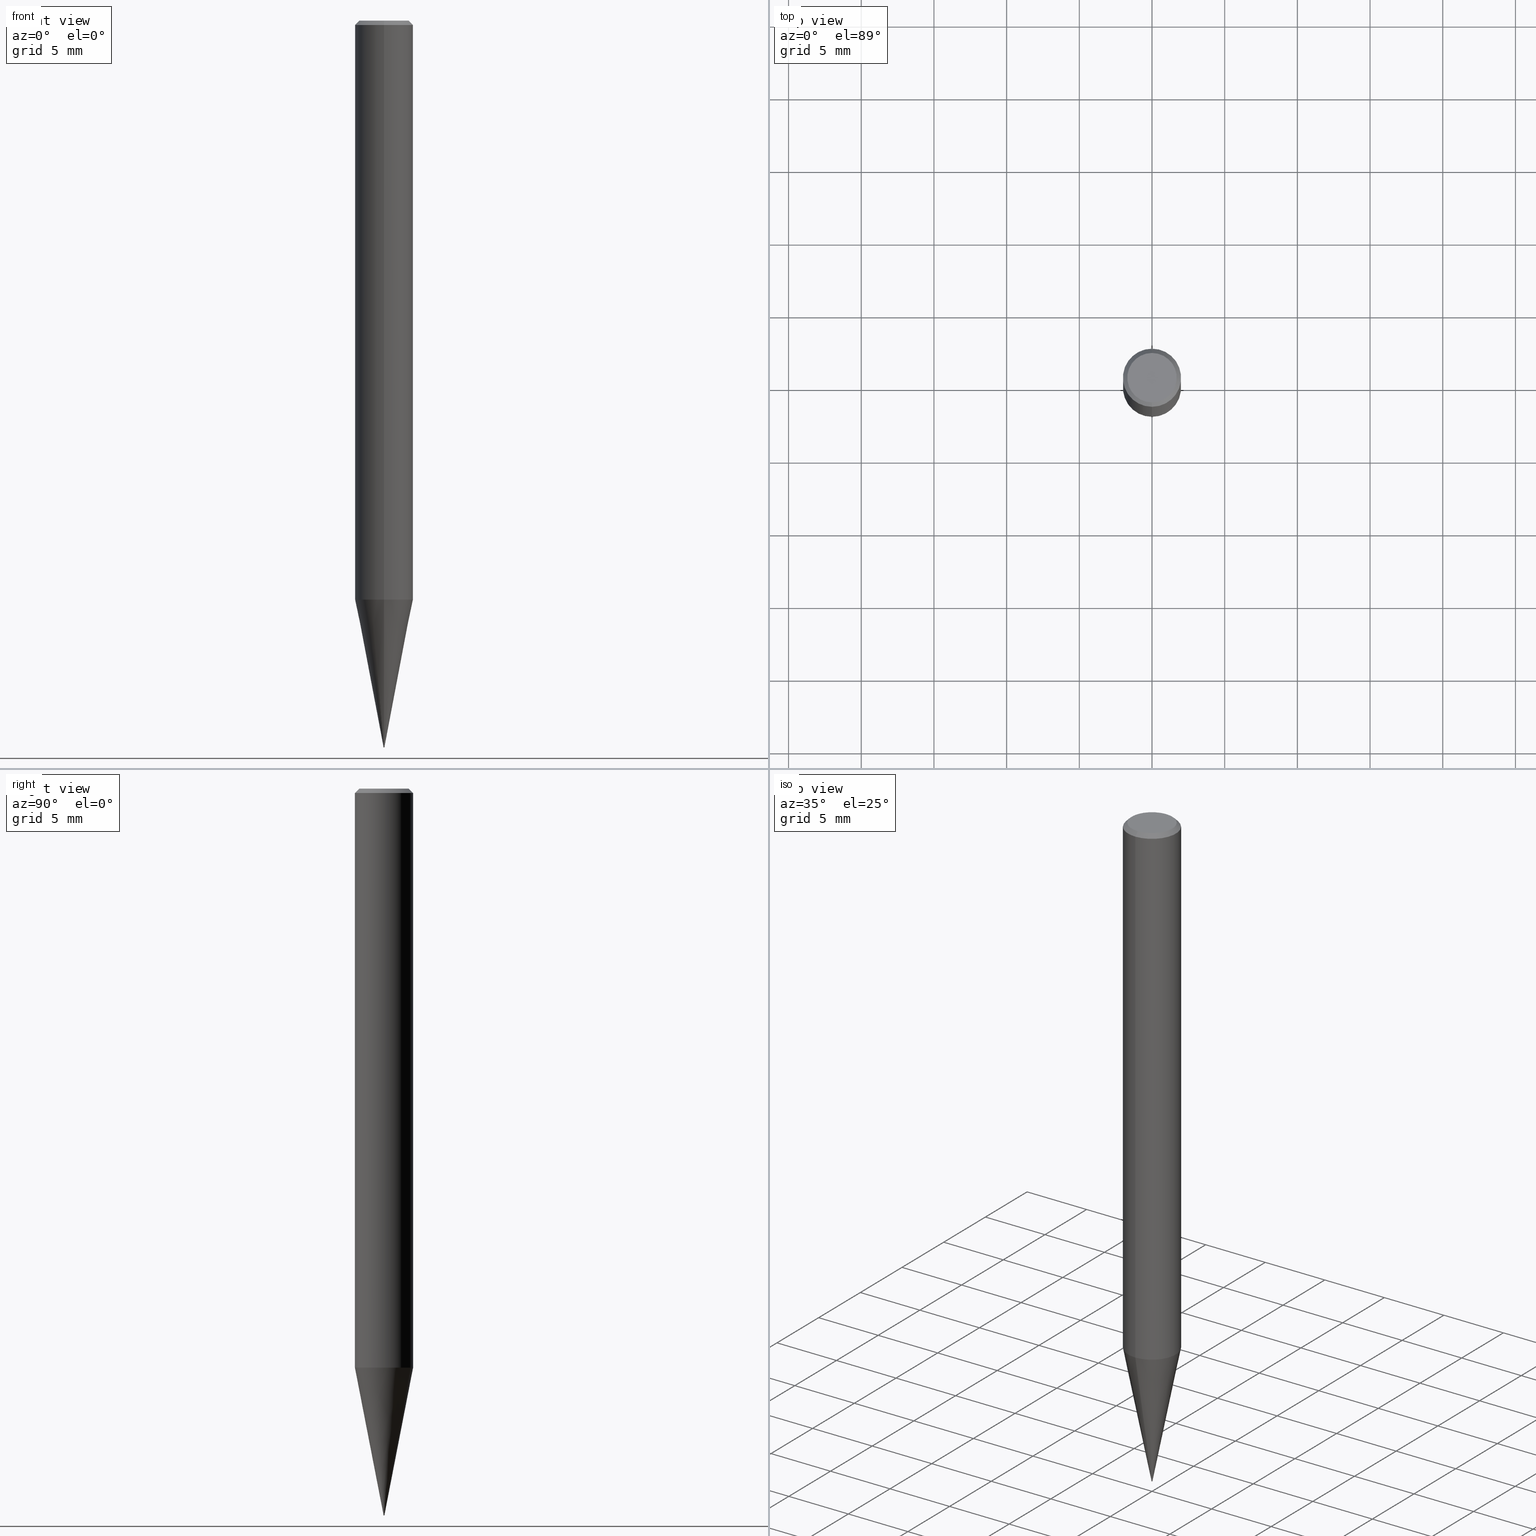
[diagram: canonical four-view strip — front | top / right | iso, engineering-drawing reading convention]
A machine part, canonical four-view strip (front | top / right | iso — engineering-drawing reading convention). The complete STEP part file that produces these views, byte-faithful:
ISO-10303-21;
HEADER;
FILE_DESCRIPTION(('no description'),'unknown implementation level');
FILE_NAME('HSB20008-0008-Huellk.stp','  ',('CIMSOURCE GmbH'),('CADClick - KiM GmbH - www.kimweb.de'),'unknown preprocess','ACIS','unknown authorization');
FILE_SCHEMA(('automotive_design'));
ENDSEC;
DATA;
#1=MECHANICAL_DESIGN_GEOMETRIC_PRESENTATION_REPRESENTATION(' ',(#14,#15,#16,#17,#18,#19,#20,#21,#22,#23,#24,#25,#26,#27,#28,#29,#30,#31,#32,#33,#34,#35,#36,#37,#38,#39,#40,#41,#42,#43,#44,#45,#46,#47,#48,#49,#50,#51,#52,#53,#54,#55,#56,#57,#58,#59,#60,#61,#62,#63,#64,#65,#66),#10);
#2=PRODUCT_DEFINITION_CONTEXT('',#67,'design');
#3=APPLICATION_PROTOCOL_DEFINITION('INTERNATIONAL STANDARD','automotive_design',1994,#67);
#4=PRODUCT_CATEGORY_RELATIONSHIP('NONE','NONE',#68,#69);
#5=SHAPE_DEFINITION_REPRESENTATION(#70,#71);
#6=PRODUCT_DEFINITION_CONTEXT('',#72,'design');
#7=APPLICATION_PROTOCOL_DEFINITION('INTERNATIONAL STANDARD','automotive_design',1994,#72);
#8=PRODUCT_CATEGORY_RELATIONSHIP('NONE','NONE',#73,#74);
#9=SHAPE_DEFINITION_REPRESENTATION(#75,#76);
#10= (GEOMETRIC_REPRESENTATION_CONTEXT(3)GLOBAL_UNCERTAINTY_ASSIGNED_CONTEXT((#79))GLOBAL_UNIT_ASSIGNED_CONTEXT((#81,#82,#83))REPRESENTATION_CONTEXT('NONE','WORKSPACE'));
#14=STYLED_ITEM('',(#85),#86);
#15=STYLED_ITEM('',(#87),#88);
#16=STYLED_ITEM('',(#89),#90);
#17=STYLED_ITEM('',(#91),#92);
#18=STYLED_ITEM('',(#93),#94);
#19=STYLED_ITEM('',(#95),#96);
#20=STYLED_ITEM('',(#97),#98);
#21=STYLED_ITEM('',(#99),#100);
#22=STYLED_ITEM('',(#101),#102);
#23=STYLED_ITEM('',(#103),#104);
#24=STYLED_ITEM('',(#105),#106);
#25=STYLED_ITEM('',(#107),#108);
#26=STYLED_ITEM('',(#109),#110);
#27=STYLED_ITEM('',(#111),#112);
#28=STYLED_ITEM('',(#113),#114);
#29=STYLED_ITEM('',(#115),#116);
#30=STYLED_ITEM('',(#117),#118);
#31=STYLED_ITEM('',(#119),#120);
#32=STYLED_ITEM('',(#121),#122);
#33=STYLED_ITEM('',(#123),#124);
#34=STYLED_ITEM('',(#125),#126);
#35=STYLED_ITEM('',(#127),#128);
#36=STYLED_ITEM('',(#129),#130);
#37=STYLED_ITEM('',(#131),#132);
#38=STYLED_ITEM('',(#133),#134);
#39=STYLED_ITEM('',(#135),#136);
#40=STYLED_ITEM('',(#137),#138);
#41=STYLED_ITEM('',(#139),#140);
#42=STYLED_ITEM('',(#141),#142);
#43=STYLED_ITEM('',(#143),#144);
#44=STYLED_ITEM('',(#145),#146);
#45=STYLED_ITEM('',(#147),#148);
#46=STYLED_ITEM('',(#149),#150);
#47=STYLED_ITEM('',(#151),#152);
#48=STYLED_ITEM('',(#153),#154);
#49=STYLED_ITEM('',(#155),#156);
#50=STYLED_ITEM('',(#157),#158);
#51=STYLED_ITEM('',(#159),#160);
#52=STYLED_ITEM('',(#161),#162);
#53=STYLED_ITEM('',(#163),#164);
#54=STYLED_ITEM('',(#165),#166);
#55=STYLED_ITEM('',(#167),#168);
#56=STYLED_ITEM('',(#169),#170);
#57=STYLED_ITEM('',(#171),#172);
#58=STYLED_ITEM('',(#173),#174);
#59=STYLED_ITEM('',(#175),#176);
#60=STYLED_ITEM('',(#177),#178);
#61=STYLED_ITEM('',(#179),#180);
#62=STYLED_ITEM('',(#181),#182);
#63=STYLED_ITEM('',(#183),#184);
#64=STYLED_ITEM('',(#185),#186);
#65=STYLED_ITEM('',(#187),#188);
#66=STYLED_ITEM('',(#189),#190);
#67=APPLICATION_CONTEXT(' ');
#68=PRODUCT_CATEGORY('part','NONE');
#69=PRODUCT_RELATED_PRODUCT_CATEGORY('detail',' ',(#191));
#70=PRODUCT_DEFINITION_SHAPE('NONE','NONE',#192);
#71=ADVANCED_BREP_SHAPE_REPRESENTATION('1',(#86,#193),#10);
#72=APPLICATION_CONTEXT(' ');
#73=PRODUCT_CATEGORY('part','NONE');
#74=PRODUCT_RELATED_PRODUCT_CATEGORY('detail',' ',(#194));
#75=PRODUCT_DEFINITION_SHAPE('NONE','NONE',#195);
#76=ADVANCED_BREP_SHAPE_REPRESENTATION('2',(#92,#196),#10);
#79=UNCERTAINTY_MEASURE_WITH_UNIT(LENGTH_MEASURE(1.0E-006),#81,'','');
#81= (CONVERSION_BASED_UNIT('MILLIMETRE',#199)LENGTH_UNIT()NAMED_UNIT(#202));
#82= (NAMED_UNIT(#204)PLANE_ANGLE_UNIT()SI_UNIT($,.RADIAN.));
#83= (NAMED_UNIT(#204)SOLID_ANGLE_UNIT()SI_UNIT($,.STERADIAN.));
#85=PRESENTATION_STYLE_ASSIGNMENT((#210));
#86=MANIFOLD_SOLID_BREP('1',#211);
#87=PRESENTATION_STYLE_ASSIGNMENT((#212));
#88=VERTEX_POINT('',#213);
#89=PRESENTATION_STYLE_ASSIGNMENT((#214));
#90=VERTEX_POINT('',#215);
#91=PRESENTATION_STYLE_ASSIGNMENT((#216));
#92=MANIFOLD_SOLID_BREP('2',#217);
#93=PRESENTATION_STYLE_ASSIGNMENT((#218));
#94=EDGE_CURVE('',#146,#142,#219,.T.);
#95=PRESENTATION_STYLE_ASSIGNMENT((#220));
#96=VERTEX_POINT('',#221);
#97=PRESENTATION_STYLE_ASSIGNMENT((#222));
#98=EDGE_CURVE('',#90,#146,#223,.T.);
#99=PRESENTATION_STYLE_ASSIGNMENT((#224));
#100=EDGE_CURVE('',#88,#156,#225,.T.);
#101=PRESENTATION_STYLE_ASSIGNMENT((#226));
#102=EDGE_CURVE('',#142,#164,#227,.T.);
#103=PRESENTATION_STYLE_ASSIGNMENT((#228));
#104=EDGE_CURVE('',#122,#96,#229,.T.);
#105=PRESENTATION_STYLE_ASSIGNMENT((#230));
#106=EDGE_CURVE('',#132,#90,#231,.T.);
#107=PRESENTATION_STYLE_ASSIGNMENT((#232));
#108=EDGE_CURVE('',#96,#176,#233,.T.);
#109=PRESENTATION_STYLE_ASSIGNMENT((#234));
#110=ADVANCED_FACE('',(#235),#236,.T.);
#111=PRESENTATION_STYLE_ASSIGNMENT((#237));
#112=ADVANCED_FACE('',(#238),#239,.T.);
#113=PRESENTATION_STYLE_ASSIGNMENT((#240));
#114=EDGE_CURVE('',#140,#122,#241,.T.);
#115=PRESENTATION_STYLE_ASSIGNMENT((#242));
#116=EDGE_CURVE('',#152,#156,#243,.T.);
#117=PRESENTATION_STYLE_ASSIGNMENT((#244));
#118=EDGE_CURVE('',#90,#132,#245,.T.);
#119=PRESENTATION_STYLE_ASSIGNMENT((#246));
#120=ADVANCED_FACE('',(#247),#248,.T.);
#121=PRESENTATION_STYLE_ASSIGNMENT((#249));
#122=VERTEX_POINT('',#250);
#123=PRESENTATION_STYLE_ASSIGNMENT((#251));
#124=ADVANCED_FACE('',(#252),#253,.T.);
#125=PRESENTATION_STYLE_ASSIGNMENT((#254));
#126=ADVANCED_FACE('',(#255),#256,.T.);
#127=PRESENTATION_STYLE_ASSIGNMENT((#257));
#128=ADVANCED_FACE('',(#258),#259,.T.);
#129=PRESENTATION_STYLE_ASSIGNMENT((#260));
#130=EDGE_CURVE('',#96,#122,#261,.T.);
#131=PRESENTATION_STYLE_ASSIGNMENT((#262));
#132=VERTEX_POINT('',#263);
#133=PRESENTATION_STYLE_ASSIGNMENT((#264));
#134=ADVANCED_FACE('',(#265),#266,.T.);
#135=PRESENTATION_STYLE_ASSIGNMENT((#267));
#136=VERTEX_POINT('',#268);
#137=PRESENTATION_STYLE_ASSIGNMENT((#269));
#138=EDGE_CURVE('',#164,#180,#270,.T.);
#139=PRESENTATION_STYLE_ASSIGNMENT((#271));
#140=VERTEX_POINT('',#272);
#141=PRESENTATION_STYLE_ASSIGNMENT((#273));
#142=VERTEX_POINT('',#274);
#143=PRESENTATION_STYLE_ASSIGNMENT((#275));
#144=EDGE_CURVE('',#156,#152,#276,.T.);
#145=PRESENTATION_STYLE_ASSIGNMENT((#277));
#146=VERTEX_POINT('',#278);
#147=PRESENTATION_STYLE_ASSIGNMENT((#279));
#148=EDGE_CURVE('',#152,#136,#280,.T.);
#149=PRESENTATION_STYLE_ASSIGNMENT((#281));
#150=EDGE_CURVE('',#140,#176,#282,.T.);
#151=PRESENTATION_STYLE_ASSIGNMENT((#283));
#152=VERTEX_POINT('',#284);
#153=PRESENTATION_STYLE_ASSIGNMENT((#285));
#154=EDGE_CURVE('',#180,#146,#286,.T.);
#155=PRESENTATION_STYLE_ASSIGNMENT((#287));
#156=VERTEX_POINT('',#288);
#157=PRESENTATION_STYLE_ASSIGNMENT((#289));
#158=EDGE_CURVE('',#146,#180,#290,.T.);
#159=PRESENTATION_STYLE_ASSIGNMENT((#291));
#160=EDGE_CURVE('',#180,#132,#292,.T.);
#161=PRESENTATION_STYLE_ASSIGNMENT((#293));
#162=ADVANCED_FACE('',(#294),#295,.T.);
#163=PRESENTATION_STYLE_ASSIGNMENT((#296));
#164=VERTEX_POINT('',#297);
#165=PRESENTATION_STYLE_ASSIGNMENT((#298));
#166=EDGE_CURVE('',#164,#142,#299,.T.);
#167=PRESENTATION_STYLE_ASSIGNMENT((#300));
#168=EDGE_CURVE('',#88,#136,#301,.T.);
#169=PRESENTATION_STYLE_ASSIGNMENT((#302));
#170=ADVANCED_FACE('',(#303),#304,.T.);
#171=PRESENTATION_STYLE_ASSIGNMENT((#305));
#172=ADVANCED_FACE('',(#306),#307,.T.);
#173=PRESENTATION_STYLE_ASSIGNMENT((#308));
#174=ADVANCED_FACE('',(#309,#310),#311,.T.);
#175=PRESENTATION_STYLE_ASSIGNMENT((#312));
#176=VERTEX_POINT('',#313);
#177=PRESENTATION_STYLE_ASSIGNMENT((#314));
#178=ADVANCED_FACE('',(#315),#316,.T.);
#179=PRESENTATION_STYLE_ASSIGNMENT((#317));
#180=VERTEX_POINT('',#318);
#181=PRESENTATION_STYLE_ASSIGNMENT((#319));
#182=EDGE_CURVE('',#176,#140,#320,.T.);
#183=PRESENTATION_STYLE_ASSIGNMENT((#321));
#184=EDGE_CURVE('',#136,#88,#322,.T.);
#185=PRESENTATION_STYLE_ASSIGNMENT((#323));
#186=EDGE_CURVE('',#152,#156,#324,.T.);
#187=PRESENTATION_STYLE_ASSIGNMENT((#325));
#188=ADVANCED_FACE('',(#326),#327,.T.);
#189=PRESENTATION_STYLE_ASSIGNMENT((#328));
#190=ADVANCED_FACE('',(#329),#330,.T.);
#191=PRODUCT('1','1','PART-1-DESC',(#331));
#192=PRODUCT_DEFINITION('NONE','NONE',#332,#2);
#193=AXIS2_PLACEMENT_3D('',#333,#334,#335);
#194=PRODUCT('2','2','PART-2-DESC',(#336));
#195=PRODUCT_DEFINITION('NONE','NONE',#337,#6);
#196=AXIS2_PLACEMENT_3D('',#338,#339,#340);
#199=LENGTH_MEASURE_WITH_UNIT(LENGTH_MEASURE(1.0),#341);
#202=DIMENSIONAL_EXPONENTS(1.0,0.0,0.0,0.0,0.0,0.0,0.0);
#204=DIMENSIONAL_EXPONENTS(0.0,0.0,0.0,0.0,0.0,0.0,0.0);
#210=SURFACE_STYLE_USAGE(.BOTH.,#342);
#211=CLOSED_SHELL('',(#172,#178,#120,#174,#126,#162,#190,#134,#170));
#212=POINT_STYLE(' ',#343,POSITIVE_LENGTH_MEASURE(1.0E-006),#344);
#213=CARTESIAN_POINT('',(0.0,0.0399,-49.92));
#214=POINT_STYLE(' ',#345,POSITIVE_LENGTH_MEASURE(1.0E-006),#346);
#215=CARTESIAN_POINT('',(2.44921270764475E-016,-2.0,-39.837));
#216=SURFACE_STYLE_USAGE(.BOTH.,#347);
#217=CLOSED_SHELL('',(#110,#188,#124,#128,#112));
#218=CURVE_STYLE('',#348,POSITIVE_LENGTH_MEASURE(1.0E-006),#349);
#219=LINE('',#350,#351);
#220=POINT_STYLE(' ',#352,POSITIVE_LENGTH_MEASURE(1.0E-006),#353);
#221=CARTESIAN_POINT('',(0.0,1.99995,-39.837));
#222=CURVE_STYLE('',#354,POSITIVE_LENGTH_MEASURE(1.0E-006),#355);
#223=LINE('',#356,#357);
#224=CURVE_STYLE('',#358,POSITIVE_LENGTH_MEASURE(1.0E-006),#359);
#225=LINE('',#360,#361);
#226=CURVE_STYLE('',#362,POSITIVE_LENGTH_MEASURE(1.0E-006),#363);
#227=CIRCLE('',#364,1.7);
#228=CURVE_STYLE('',#365,POSITIVE_LENGTH_MEASURE(1.0E-006),#366);
#229=CIRCLE('',#367,1.99995);
#230=CURVE_STYLE('',#368,POSITIVE_LENGTH_MEASURE(1.0E-006),#369);
#231=CIRCLE('',#370,2.0);
#232=CURVE_STYLE('',#371,POSITIVE_LENGTH_MEASURE(1.0E-006),#372);
#233=LINE('',#373,#374);
#234=SURFACE_STYLE_USAGE(.BOTH.,#375);
#235=FACE_OUTER_BOUND('',#376,.T.);
#236=SPHERICAL_SURFACE('',#377,0.04);
#237=SURFACE_STYLE_USAGE(.BOTH.,#378);
#238=FACE_OUTER_BOUND('',#379,.T.);
#239=SPHERICAL_SURFACE('',#380,0.04);
#240=CURVE_STYLE('',#381,POSITIVE_LENGTH_MEASURE(1.0E-006),#382);
#241=LINE('',#383,#384);
#242=CURVE_STYLE('',#385,POSITIVE_LENGTH_MEASURE(1.0E-006),#386);
#243=CIRCLE('',#387,0.04);
#244=CURVE_STYLE('',#388,POSITIVE_LENGTH_MEASURE(1.0E-006),#389);
#245=CIRCLE('',#390,2.0);
#246=SURFACE_STYLE_USAGE(.BOTH.,#391);
#247=FACE_OUTER_BOUND('',#392,.T.);
#248=CONICAL_SURFACE('',#393,1.85,0.785398163397453);
#249=POINT_STYLE(' ',#394,POSITIVE_LENGTH_MEASURE(1.0E-006),#395);
#250=CARTESIAN_POINT('',(2.44915147732706E-016,-1.99995,-39.837));
#251=SURFACE_STYLE_USAGE(.BOTH.,#396);
#252=FACE_OUTER_BOUND('',#397,.T.);
#253=PLANE('',#398);
#254=SURFACE_STYLE_USAGE(.BOTH.,#399);
#255=FACE_OUTER_BOUND('',#400,.T.);
#256=PLANE('',#401);
#257=SURFACE_STYLE_USAGE(.BOTH.,#402);
#258=FACE_OUTER_BOUND('',#403,.T.);
#259=CONICAL_SURFACE('',#404,0.03995,0.00249999479168627);
#260=CURVE_STYLE('',#405,POSITIVE_LENGTH_MEASURE(1.0E-006),#406);
#261=CIRCLE('',#407,1.99995);
#262=POINT_STYLE(' ',#408,POSITIVE_LENGTH_MEASURE(1.0E-006),#409);
#263=CARTESIAN_POINT('',(0.0,2.0,-39.837));
#264=SURFACE_STYLE_USAGE(.BOTH.,#410);
#265=FACE_OUTER_BOUND('',#411,.T.);
#266=CONICAL_SURFACE('',#412,1.01995,0.191992271145669);
#267=POINT_STYLE(' ',#413,POSITIVE_LENGTH_MEASURE(1.0E-006),#414);
#268=CARTESIAN_POINT('',(4.88617935175128E-018,-0.0399,-49.92));
#269=CURVE_STYLE('',#415,POSITIVE_LENGTH_MEASURE(1.0E-006),#416);
#270=LINE('',#417,#418);
#271=POINT_STYLE(' ',#419,POSITIVE_LENGTH_MEASURE(1.0E-006),#420);
#272=CARTESIAN_POINT('',(4.89230238352041E-018,-0.03995,-49.92));
#273=POINT_STYLE(' ',#421,POSITIVE_LENGTH_MEASURE(1.0E-006),#422);
#274=CARTESIAN_POINT('',(2.08183080149804E-016,-1.7,0.0));
#275=CURVE_STYLE('',#423,POSITIVE_LENGTH_MEASURE(1.0E-006),#424);
#276=CIRCLE('',#425,0.04);
#277=POINT_STYLE(' ',#426,POSITIVE_LENGTH_MEASURE(1.0E-006),#427);
#278=CARTESIAN_POINT('',(2.44921270764475E-016,-2.0,-0.299999999999997));
#279=CURVE_STYLE('',#428,POSITIVE_LENGTH_MEASURE(1.0E-006),#429);
#280=LINE('',#430,#431);
#281=CURVE_STYLE('',#432,POSITIVE_LENGTH_MEASURE(1.0E-006),#433);
#282=CIRCLE('',#434,0.03995);
#283=POINT_STYLE(' ',#435,POSITIVE_LENGTH_MEASURE(1.0E-006),#436);
#284=CARTESIAN_POINT('',(4.89842541528951E-018,-0.04,-49.96));
#285=CURVE_STYLE('',#437,POSITIVE_LENGTH_MEASURE(1.0E-006),#438);
#286=CIRCLE('',#439,2.0);
#287=POINT_STYLE(' ',#440,POSITIVE_LENGTH_MEASURE(1.0E-006),#441);
#288=CARTESIAN_POINT('',(0.0,0.04,-49.96));
#289=CURVE_STYLE('',#442,POSITIVE_LENGTH_MEASURE(1.0E-006),#443);
#290=CIRCLE('',#444,2.0);
#291=CURVE_STYLE('',#445,POSITIVE_LENGTH_MEASURE(1.0E-006),#446);
#292=LINE('',#447,#448);
#293=SURFACE_STYLE_USAGE(.BOTH.,#449);
#294=FACE_OUTER_BOUND('',#450,.T.);
#295=CONICAL_SURFACE('',#451,1.85,0.785398163397453);
#296=POINT_STYLE(' ',#452,POSITIVE_LENGTH_MEASURE(1.0E-006),#453);
#297=CARTESIAN_POINT('',(0.0,1.7,0.0));
#298=CURVE_STYLE('',#454,POSITIVE_LENGTH_MEASURE(1.0E-006),#455);
#299=CIRCLE('',#456,1.7);
#300=CURVE_STYLE('',#457,POSITIVE_LENGTH_MEASURE(1.0E-006),#458);
#301=CIRCLE('',#459,0.0399);
#302=SURFACE_STYLE_USAGE(.BOTH.,#460);
#303=FACE_OUTER_BOUND('',#461,.T.);
#304=PLANE('',#462);
#305=SURFACE_STYLE_USAGE(.BOTH.,#463);
#306=FACE_OUTER_BOUND('',#464,.T.);
#307=CONICAL_SURFACE('',#465,1.01995,0.191992271145669);
#308=SURFACE_STYLE_USAGE(.BOTH.,#466);
#309=FACE_OUTER_BOUND('',#467,.T.);
#310=FACE_BOUND('',#468,.T.);
#311=PLANE('',#469);
#312=POINT_STYLE(' ',#470,POSITIVE_LENGTH_MEASURE(1.0E-006),#471);
#313=CARTESIAN_POINT('',(0.0,0.03995,-49.92));
#314=SURFACE_STYLE_USAGE(.BOTH.,#472);
#315=FACE_OUTER_BOUND('',#473,.T.);
#316=CYLINDRICAL_SURFACE('',#474,2.0);
#317=POINT_STYLE(' ',#475,POSITIVE_LENGTH_MEASURE(1.0E-006),#476);
#318=CARTESIAN_POINT('',(0.0,2.0,-0.299999999999997));
#319=CURVE_STYLE('',#477,POSITIVE_LENGTH_MEASURE(1.0E-006),#478);
#320=CIRCLE('',#479,0.03995);
#321=CURVE_STYLE('',#480,POSITIVE_LENGTH_MEASURE(1.0E-006),#481);
#322=CIRCLE('',#482,0.0399);
#323=CURVE_STYLE('',#483,POSITIVE_LENGTH_MEASURE(1.0E-006),#484);
#324=CIRCLE('',#485,0.04);
#325=SURFACE_STYLE_USAGE(.BOTH.,#486);
#326=FACE_OUTER_BOUND('',#487,.T.);
#327=CONICAL_SURFACE('',#488,0.03995,0.00249999479168627);
#328=SURFACE_STYLE_USAGE(.BOTH.,#489);
#329=FACE_OUTER_BOUND('',#490,.T.);
#330=CYLINDRICAL_SURFACE('',#491,2.0);
#331=PRODUCT_CONTEXT('',#67,'mechanical');
#332=PRODUCT_DEFINITION_FORMATION_WITH_SPECIFIED_SOURCE(' ','NONE',#191,.NOT_KNOWN.);
#333=CARTESIAN_POINT('',(0.0,0.0,0.0));
#334=DIRECTION('',(0.0,0.0,1.0));
#335=DIRECTION('',(1.0,0.0,0.0));
#336=PRODUCT_CONTEXT('',#72,'mechanical');
#337=PRODUCT_DEFINITION_FORMATION_WITH_SPECIFIED_SOURCE(' ','NONE',#194,.NOT_KNOWN.);
#338=CARTESIAN_POINT('',(0.0,0.0,0.0));
#339=DIRECTION('',(0.0,0.0,1.0));
#340=DIRECTION('',(1.0,0.0,0.0));
#341= (NAMED_UNIT(#202)LENGTH_UNIT()SI_UNIT(.MILLI.,.METRE.));
#342=SURFACE_SIDE_STYLE('',(#493));
#343=PRE_DEFINED_MARKER('');
#344=COLOUR_RGB('',0.800000011920929,0.800000011920929,0.800000011920929);
#345=PRE_DEFINED_MARKER('');
#346=COLOUR_RGB('',0.498039215803146,0.498039215803146,0.498039215803146);
#347=SURFACE_SIDE_STYLE('',(#494));
#348=DRAUGHTING_PRE_DEFINED_CURVE_FONT('continuous');
#349=COLOUR_RGB('',0.498039215803146,0.498039215803146,0.498039215803146);
#350=CARTESIAN_POINT('',(2.2655217545714E-016,-1.85,-0.149999999999999));
#351=VECTOR('',#495,1.0);
#352=PRE_DEFINED_MARKER('');
#353=COLOUR_RGB('',0.498039215803146,0.498039215803146,0.498039215803146);
#354=DRAUGHTING_PRE_DEFINED_CURVE_FONT('continuous');
#355=COLOUR_RGB('',0.498039215803146,0.498039215803146,0.498039215803146);
#356=CARTESIAN_POINT('',(2.44921270764475E-016,-2.0,-20.0685));
#357=VECTOR('',#496,1.0);
#358=DRAUGHTING_PRE_DEFINED_CURVE_FONT('continuous');
#359=COLOUR_RGB('',0.800000011920929,0.800000011920929,0.800000011920929);
#360=CARTESIAN_POINT('',(-4.8923023835204E-018,0.03995,-49.94));
#361=VECTOR('',#497,1.0);
#362=DRAUGHTING_PRE_DEFINED_CURVE_FONT('continuous');
#363=COLOUR_RGB('',0.498039215803146,0.498039215803146,0.498039215803146);
#364=AXIS2_PLACEMENT_3D('',#498,#499,#500);
#365=DRAUGHTING_PRE_DEFINED_CURVE_FONT('continuous');
#366=COLOUR_RGB('',0.498039215803146,0.498039215803146,0.498039215803146);
#367=AXIS2_PLACEMENT_3D('',#501,#502,#503);
#368=DRAUGHTING_PRE_DEFINED_CURVE_FONT('continuous');
#369=COLOUR_RGB('',0.498039215803146,0.498039215803146,0.498039215803146);
#370=AXIS2_PLACEMENT_3D('',#504,#505,#506);
#371=DRAUGHTING_PRE_DEFINED_CURVE_FONT('continuous');
#372=COLOUR_RGB('',0.498039215803146,0.498039215803146,0.498039215803146);
#373=CARTESIAN_POINT('',(-1.24903725058113E-016,1.01995,-44.8785));
#374=VECTOR('',#507,1.0);
#375=SURFACE_SIDE_STYLE('',(#508));
#376=EDGE_LOOP('',(#509,#510));
#377=AXIS2_PLACEMENT_3D('',#511,#512,#513);
#378=SURFACE_SIDE_STYLE('',(#514));
#379=EDGE_LOOP('',(#515,#516));
#380=AXIS2_PLACEMENT_3D('',#517,#518,#519);
#381=DRAUGHTING_PRE_DEFINED_CURVE_FONT('continuous');
#382=COLOUR_RGB('',0.498039215803146,0.498039215803146,0.498039215803146);
#383=CARTESIAN_POINT('',(1.24903725058113E-016,-1.01995,-44.8785));
#384=VECTOR('',#520,1.0);
#385=DRAUGHTING_PRE_DEFINED_CURVE_FONT('continuous');
#386=COLOUR_RGB('',0.800000011920929,0.800000011920929,0.800000011920929);
#387=AXIS2_PLACEMENT_3D('',#521,#522,#523);
#388=DRAUGHTING_PRE_DEFINED_CURVE_FONT('continuous');
#389=COLOUR_RGB('',0.498039215803146,0.498039215803146,0.498039215803146);
#390=AXIS2_PLACEMENT_3D('',#524,#525,#526);
#391=SURFACE_SIDE_STYLE('',(#527));
#392=EDGE_LOOP('',(#528,#529,#530,#531));
#393=AXIS2_PLACEMENT_3D('',#532,#533,#534);
#394=PRE_DEFINED_MARKER('');
#395=COLOUR_RGB('',0.498039215803146,0.498039215803146,0.498039215803146);
#396=SURFACE_SIDE_STYLE('',(#535));
#397=EDGE_LOOP('',(#536,#537));
#398=AXIS2_PLACEMENT_3D('',#538,#539,#540);
#399=SURFACE_SIDE_STYLE('',(#541));
#400=EDGE_LOOP('',(#542,#543));
#401=AXIS2_PLACEMENT_3D('',#544,#545,#546);
#402=SURFACE_SIDE_STYLE('',(#547));
#403=EDGE_LOOP('',(#548,#549,#550,#551));
#404=AXIS2_PLACEMENT_3D('',#552,#553,#554);
#405=DRAUGHTING_PRE_DEFINED_CURVE_FONT('continuous');
#406=COLOUR_RGB('',0.498039215803146,0.498039215803146,0.498039215803146);
#407=AXIS2_PLACEMENT_3D('',#555,#556,#557);
#408=PRE_DEFINED_MARKER('');
#409=COLOUR_RGB('',0.498039215803146,0.498039215803146,0.498039215803146);
#410=SURFACE_SIDE_STYLE('',(#558));
#411=EDGE_LOOP('',(#559,#560,#561,#562));
#412=AXIS2_PLACEMENT_3D('',#563,#564,#565);
#413=PRE_DEFINED_MARKER('');
#414=COLOUR_RGB('',0.800000011920929,0.800000011920929,0.800000011920929);
#415=DRAUGHTING_PRE_DEFINED_CURVE_FONT('continuous');
#416=COLOUR_RGB('',0.498039215803146,0.498039215803146,0.498039215803146);
#417=CARTESIAN_POINT('',(-2.2655217545714E-016,1.85,-0.149999999999999));
#418=VECTOR('',#566,1.0);
#419=PRE_DEFINED_MARKER('');
#420=COLOUR_RGB('',0.498039215803146,0.498039215803146,0.498039215803146);
#421=PRE_DEFINED_MARKER('');
#422=COLOUR_RGB('',0.498039215803146,0.498039215803146,0.498039215803146);
#423=DRAUGHTING_PRE_DEFINED_CURVE_FONT('continuous');
#424=COLOUR_RGB('',0.800000011920929,0.800000011920929,0.800000011920929);
#425=AXIS2_PLACEMENT_3D('',#567,#568,#569);
#426=PRE_DEFINED_MARKER('');
#427=COLOUR_RGB('',0.498039215803146,0.498039215803146,0.498039215803146);
#428=DRAUGHTING_PRE_DEFINED_CURVE_FONT('continuous');
#429=COLOUR_RGB('',0.800000011920929,0.800000011920929,0.800000011920929);
#430=CARTESIAN_POINT('',(4.8923023835204E-018,-0.03995,-49.94));
#431=VECTOR('',#570,1.0);
#432=DRAUGHTING_PRE_DEFINED_CURVE_FONT('continuous');
#433=COLOUR_RGB('',0.498039215803146,0.498039215803146,0.498039215803146);
#434=AXIS2_PLACEMENT_3D('',#571,#572,#573);
#435=PRE_DEFINED_MARKER('');
#436=COLOUR_RGB('',0.800000011920929,0.800000011920929,0.800000011920929);
#437=DRAUGHTING_PRE_DEFINED_CURVE_FONT('continuous');
#438=COLOUR_RGB('',0.498039215803146,0.498039215803146,0.498039215803146);
#439=AXIS2_PLACEMENT_3D('',#574,#575,#576);
#440=PRE_DEFINED_MARKER('');
#441=COLOUR_RGB('',0.800000011920929,0.800000011920929,0.800000011920929);
#442=DRAUGHTING_PRE_DEFINED_CURVE_FONT('continuous');
#443=COLOUR_RGB('',0.498039215803146,0.498039215803146,0.498039215803146);
#444=AXIS2_PLACEMENT_3D('',#577,#578,#579);
#445=DRAUGHTING_PRE_DEFINED_CURVE_FONT('continuous');
#446=COLOUR_RGB('',0.498039215803146,0.498039215803146,0.498039215803146);
#447=CARTESIAN_POINT('',(-2.44921270764475E-016,2.0,-20.0685));
#448=VECTOR('',#580,1.0);
#449=SURFACE_SIDE_STYLE('',(#581));
#450=EDGE_LOOP('',(#582,#583,#584,#585));
#451=AXIS2_PLACEMENT_3D('',#586,#587,#588);
#452=PRE_DEFINED_MARKER('');
#453=COLOUR_RGB('',0.498039215803146,0.498039215803146,0.498039215803146);
#454=DRAUGHTING_PRE_DEFINED_CURVE_FONT('continuous');
#455=COLOUR_RGB('',0.498039215803146,0.498039215803146,0.498039215803146);
#456=AXIS2_PLACEMENT_3D('',#589,#590,#591);
#457=DRAUGHTING_PRE_DEFINED_CURVE_FONT('continuous');
#458=COLOUR_RGB('',0.800000011920929,0.800000011920929,0.800000011920929);
#459=AXIS2_PLACEMENT_3D('',#592,#593,#594);
#460=SURFACE_SIDE_STYLE('',(#595));
#461=EDGE_LOOP('',(#596,#597));
#462=AXIS2_PLACEMENT_3D('',#598,#599,#600);
#463=SURFACE_SIDE_STYLE('',(#601));
#464=EDGE_LOOP('',(#602,#603,#604,#605));
#465=AXIS2_PLACEMENT_3D('',#606,#607,#608);
#466=SURFACE_SIDE_STYLE('',(#609));
#467=EDGE_LOOP('',(#610,#611));
#468=EDGE_LOOP('',(#612,#613));
#469=AXIS2_PLACEMENT_3D('',#614,#615,#616);
#470=PRE_DEFINED_MARKER('');
#471=COLOUR_RGB('',0.498039215803146,0.498039215803146,0.498039215803146);
#472=SURFACE_SIDE_STYLE('',(#617));
#473=EDGE_LOOP('',(#618,#619,#620,#621));
#474=AXIS2_PLACEMENT_3D('',#622,#623,#624);
#475=PRE_DEFINED_MARKER('');
#476=COLOUR_RGB('',0.498039215803146,0.498039215803146,0.498039215803146);
#477=DRAUGHTING_PRE_DEFINED_CURVE_FONT('continuous');
#478=COLOUR_RGB('',0.498039215803146,0.498039215803146,0.498039215803146);
#479=AXIS2_PLACEMENT_3D('',#625,#626,#627);
#480=DRAUGHTING_PRE_DEFINED_CURVE_FONT('continuous');
#481=COLOUR_RGB('',0.800000011920929,0.800000011920929,0.800000011920929);
#482=AXIS2_PLACEMENT_3D('',#628,#629,#630);
#483=DRAUGHTING_PRE_DEFINED_CURVE_FONT('continuous');
#484=COLOUR_RGB('',0.800000011920929,0.800000011920929,0.800000011920929);
#485=AXIS2_PLACEMENT_3D('',#631,#632,#633);
#486=SURFACE_SIDE_STYLE('',(#634));
#487=EDGE_LOOP('',(#635,#636,#637,#638));
#488=AXIS2_PLACEMENT_3D('',#639,#640,#641);
#489=SURFACE_SIDE_STYLE('',(#642));
#490=EDGE_LOOP('',(#643,#644,#645,#646));
#491=AXIS2_PLACEMENT_3D('',#647,#648,#649);
#493=SURFACE_STYLE_FILL_AREA(#650);
#494=SURFACE_STYLE_FILL_AREA(#651);
#495=DIRECTION('',(-8.6592745707194E-017,0.707106781186551,0.707106781186544));
#496=DIRECTION('',(-0.0,-0.0,1.0));
#497=DIRECTION('',(-3.06150631736374E-019,0.00249999218753669,-0.999996875014648));
#498=CARTESIAN_POINT('',(0.0,0.0,0.0));
#499=DIRECTION('',(0.0,0.0,-1.0));
#500=DIRECTION('',(0.0,1.0,0.0));
#501=CARTESIAN_POINT('',(0.0,0.0,-39.837));
#502=DIRECTION('',(0.0,0.0,-1.0));
#503=DIRECTION('',(0.0,1.0,0.0));
#504=CARTESIAN_POINT('',(0.0,0.0,-39.837));
#505=DIRECTION('',(0.0,0.0,-1.0));
#506=DIRECTION('',(0.0,1.0,0.0));
#507=DIRECTION('',(2.3367318496573E-017,-0.190814937580851,-0.981626028381489));
#508=SURFACE_STYLE_FILL_AREA(#652);
#509=ORIENTED_EDGE('',*,*,#116,.F.);
#510=ORIENTED_EDGE('',*,*,#186,.T.);
#511=CARTESIAN_POINT('',(0.0,0.0,-49.96));
#512=DIRECTION('',(0.0,1.0,0.0));
#513=DIRECTION('',(0.0,0.0,-1.0));
#514=SURFACE_STYLE_FILL_AREA(#653);
#515=ORIENTED_EDGE('',*,*,#116,.T.);
#516=ORIENTED_EDGE('',*,*,#144,.T.);
#517=CARTESIAN_POINT('',(0.0,0.0,-49.96));
#518=DIRECTION('',(0.0,1.0,0.0));
#519=DIRECTION('',(0.0,0.0,-1.0));
#520=DIRECTION('',(2.3367318496573E-017,-0.190814937580851,0.981626028381489));
#521=CARTESIAN_POINT('',(0.0,0.0,-49.96));
#522=DIRECTION('',(1.0,0.0,1.2246063538224E-016));
#523=DIRECTION('',(-1.2246063538224E-016,0.0,1.0));
#524=CARTESIAN_POINT('',(0.0,0.0,-39.837));
#525=DIRECTION('',(0.0,0.0,-1.0));
#526=DIRECTION('',(0.0,1.0,0.0));
#527=SURFACE_STYLE_FILL_AREA(#654);
#528=ORIENTED_EDGE('',*,*,#138,.F.);
#529=ORIENTED_EDGE('',*,*,#166,.T.);
#530=ORIENTED_EDGE('',*,*,#94,.F.);
#531=ORIENTED_EDGE('',*,*,#154,.F.);
#532=CARTESIAN_POINT('',(0.0,0.0,-0.149999999999999));
#533=DIRECTION('',(0.0,-0.0,-1.0));
#534=DIRECTION('',(0.0,1.0,0.0));
#535=SURFACE_STYLE_FILL_AREA(#655);
#536=ORIENTED_EDGE('',*,*,#168,.F.);
#537=ORIENTED_EDGE('',*,*,#184,.F.);
#538=CARTESIAN_POINT('',(0.0,0.01995,-49.92));
#539=DIRECTION('',(-0.0,0.0,1.0));
#540=DIRECTION('',(0.0,-1.0,0.0));
#541=SURFACE_STYLE_FILL_AREA(#656);
#542=ORIENTED_EDGE('',*,*,#166,.F.);
#543=ORIENTED_EDGE('',*,*,#102,.F.);
#544=CARTESIAN_POINT('',(0.0,0.85,0.0));
#545=DIRECTION('',(-0.0,0.0,1.0));
#546=DIRECTION('',(0.0,-1.0,0.0));
#547=SURFACE_STYLE_FILL_AREA(#657);
#548=ORIENTED_EDGE('',*,*,#100,.T.);
#549=ORIENTED_EDGE('',*,*,#186,.F.);
#550=ORIENTED_EDGE('',*,*,#148,.T.);
#551=ORIENTED_EDGE('',*,*,#184,.T.);
#552=CARTESIAN_POINT('',(0.0,0.0,-49.94));
#553=DIRECTION('',(0.0,-0.0,-1.0));
#554=DIRECTION('',(0.0,1.0,0.0));
#555=CARTESIAN_POINT('',(0.0,0.0,-39.837));
#556=DIRECTION('',(0.0,0.0,-1.0));
#557=DIRECTION('',(0.0,1.0,0.0));
#558=SURFACE_STYLE_FILL_AREA(#658);
#559=ORIENTED_EDGE('',*,*,#108,.T.);
#560=ORIENTED_EDGE('',*,*,#150,.F.);
#561=ORIENTED_EDGE('',*,*,#114,.T.);
#562=ORIENTED_EDGE('',*,*,#104,.T.);
#563=CARTESIAN_POINT('',(0.0,0.0,-44.8785));
#564=DIRECTION('',(-0.0,-0.0,1.0));
#565=DIRECTION('',(0.0,1.0,0.0));
#566=DIRECTION('',(-8.6592745707194E-017,0.707106781186551,-0.707106781186544));
#567=CARTESIAN_POINT('',(0.0,0.0,-49.96));
#568=DIRECTION('',(0.0,0.0,-1.0));
#569=DIRECTION('',(0.0,1.0,0.0));
#570=DIRECTION('',(-3.06150631736374E-019,0.00249999218753669,0.999996875014648));
#571=CARTESIAN_POINT('',(0.0,0.0,-49.92));
#572=DIRECTION('',(0.0,0.0,-1.0));
#573=DIRECTION('',(0.0,1.0,0.0));
#574=CARTESIAN_POINT('',(0.0,0.0,-0.299999999999997));
#575=DIRECTION('',(0.0,0.0,-1.0));
#576=DIRECTION('',(0.0,1.0,0.0));
#577=CARTESIAN_POINT('',(0.0,0.0,-0.299999999999997));
#578=DIRECTION('',(0.0,0.0,-1.0));
#579=DIRECTION('',(0.0,1.0,0.0));
#580=DIRECTION('',(0.0,0.0,-1.0));
#581=SURFACE_STYLE_FILL_AREA(#659);
#582=ORIENTED_EDGE('',*,*,#138,.T.);
#583=ORIENTED_EDGE('',*,*,#158,.F.);
#584=ORIENTED_EDGE('',*,*,#94,.T.);
#585=ORIENTED_EDGE('',*,*,#102,.T.);
#586=CARTESIAN_POINT('',(0.0,0.0,-0.149999999999999));
#587=DIRECTION('',(0.0,-0.0,-1.0));
#588=DIRECTION('',(0.0,1.0,0.0));
#589=CARTESIAN_POINT('',(0.0,0.0,0.0));
#590=DIRECTION('',(0.0,0.0,-1.0));
#591=DIRECTION('',(0.0,1.0,0.0));
#592=CARTESIAN_POINT('',(0.0,0.0,-49.92));
#593=DIRECTION('',(0.0,0.0,-1.0));
#594=DIRECTION('',(0.0,1.0,0.0));
#595=SURFACE_STYLE_FILL_AREA(#660);
#596=ORIENTED_EDGE('',*,*,#182,.T.);
#597=ORIENTED_EDGE('',*,*,#150,.T.);
#598=CARTESIAN_POINT('',(0.0,0.019975,-49.92));
#599=DIRECTION('',(0.0,0.0,-1.0));
#600=DIRECTION('',(0.0,1.0,0.0));
#601=SURFACE_STYLE_FILL_AREA(#661);
#602=ORIENTED_EDGE('',*,*,#108,.F.);
#603=ORIENTED_EDGE('',*,*,#130,.T.);
#604=ORIENTED_EDGE('',*,*,#114,.F.);
#605=ORIENTED_EDGE('',*,*,#182,.F.);
#606=CARTESIAN_POINT('',(0.0,0.0,-44.8785));
#607=DIRECTION('',(-0.0,-0.0,1.0));
#608=DIRECTION('',(0.0,1.0,0.0));
#609=SURFACE_STYLE_FILL_AREA(#662);
#610=ORIENTED_EDGE('',*,*,#106,.T.);
#611=ORIENTED_EDGE('',*,*,#118,.T.);
#612=ORIENTED_EDGE('',*,*,#130,.F.);
#613=ORIENTED_EDGE('',*,*,#104,.F.);
#614=CARTESIAN_POINT('',(0.0,1.0,-39.837));
#615=DIRECTION('',(0.0,0.0,-1.0));
#616=DIRECTION('',(0.0,1.0,0.0));
#617=SURFACE_STYLE_FILL_AREA(#663);
#618=ORIENTED_EDGE('',*,*,#160,.F.);
#619=ORIENTED_EDGE('',*,*,#154,.T.);
#620=ORIENTED_EDGE('',*,*,#98,.F.);
#621=ORIENTED_EDGE('',*,*,#106,.F.);
#622=CARTESIAN_POINT('',(0.0,0.0,-20.0685));
#623=DIRECTION('',(-0.0,-0.0,1.0));
#624=DIRECTION('',(0.0,1.0,0.0));
#625=CARTESIAN_POINT('',(0.0,0.0,-49.92));
#626=DIRECTION('',(0.0,0.0,-1.0));
#627=DIRECTION('',(0.0,1.0,0.0));
#628=CARTESIAN_POINT('',(0.0,0.0,-49.92));
#629=DIRECTION('',(0.0,0.0,-1.0));
#630=DIRECTION('',(0.0,1.0,0.0));
#631=CARTESIAN_POINT('',(0.0,0.0,-49.96));
#632=DIRECTION('',(0.0,0.0,-1.0));
#633=DIRECTION('',(0.0,1.0,0.0));
#634=SURFACE_STYLE_FILL_AREA(#664);
#635=ORIENTED_EDGE('',*,*,#100,.F.);
#636=ORIENTED_EDGE('',*,*,#168,.T.);
#637=ORIENTED_EDGE('',*,*,#148,.F.);
#638=ORIENTED_EDGE('',*,*,#144,.F.);
#639=CARTESIAN_POINT('',(0.0,0.0,-49.94));
#640=DIRECTION('',(0.0,-0.0,-1.0));
#641=DIRECTION('',(0.0,1.0,0.0));
#642=SURFACE_STYLE_FILL_AREA(#665);
#643=ORIENTED_EDGE('',*,*,#160,.T.);
#644=ORIENTED_EDGE('',*,*,#118,.F.);
#645=ORIENTED_EDGE('',*,*,#98,.T.);
#646=ORIENTED_EDGE('',*,*,#158,.T.);
#647=CARTESIAN_POINT('',(0.0,0.0,-20.0685));
#648=DIRECTION('',(-0.0,-0.0,1.0));
#649=DIRECTION('',(0.0,1.0,0.0));
#650=FILL_AREA_STYLE('',(#666));
#651=FILL_AREA_STYLE('',(#667));
#652=FILL_AREA_STYLE('',(#668));
#653=FILL_AREA_STYLE('',(#669));
#654=FILL_AREA_STYLE('',(#670));
#655=FILL_AREA_STYLE('',(#671));
#656=FILL_AREA_STYLE('',(#672));
#657=FILL_AREA_STYLE('',(#673));
#658=FILL_AREA_STYLE('',(#674));
#659=FILL_AREA_STYLE('',(#675));
#660=FILL_AREA_STYLE('',(#676));
#661=FILL_AREA_STYLE('',(#677));
#662=FILL_AREA_STYLE('',(#678));
#663=FILL_AREA_STYLE('',(#679));
#664=FILL_AREA_STYLE('',(#680));
#665=FILL_AREA_STYLE('',(#681));
#666=FILL_AREA_STYLE_COLOUR('',#682);
#667=FILL_AREA_STYLE_COLOUR('',#683);
#668=FILL_AREA_STYLE_COLOUR('',#684);
#669=FILL_AREA_STYLE_COLOUR('',#685);
#670=FILL_AREA_STYLE_COLOUR('',#686);
#671=FILL_AREA_STYLE_COLOUR('',#687);
#672=FILL_AREA_STYLE_COLOUR('',#688);
#673=FILL_AREA_STYLE_COLOUR('',#689);
#674=FILL_AREA_STYLE_COLOUR('',#690);
#675=FILL_AREA_STYLE_COLOUR('',#691);
#676=FILL_AREA_STYLE_COLOUR('',#692);
#677=FILL_AREA_STYLE_COLOUR('',#693);
#678=FILL_AREA_STYLE_COLOUR('',#694);
#679=FILL_AREA_STYLE_COLOUR('',#695);
#680=FILL_AREA_STYLE_COLOUR('',#696);
#681=FILL_AREA_STYLE_COLOUR('',#697);
#682=COLOUR_RGB('',0.498039215803146,0.498039215803146,0.498039215803146);
#683=COLOUR_RGB('',0.800000011920929,0.800000011920929,0.800000011920929);
#684=COLOUR_RGB('',0.800000011920929,0.800000011920929,0.800000011920929);
#685=COLOUR_RGB('',0.800000011920929,0.800000011920929,0.800000011920929);
#686=COLOUR_RGB('',0.498039215803146,0.498039215803146,0.498039215803146);
#687=COLOUR_RGB('',0.800000011920929,0.800000011920929,0.800000011920929);
#688=COLOUR_RGB('',0.498039215803146,0.498039215803146,0.498039215803146);
#689=COLOUR_RGB('',0.800000011920929,0.800000011920929,0.800000011920929);
#690=COLOUR_RGB('',0.498039215803146,0.498039215803146,0.498039215803146);
#691=COLOUR_RGB('',0.498039215803146,0.498039215803146,0.498039215803146);
#692=COLOUR_RGB('',0.498039215803146,0.498039215803146,0.498039215803146);
#693=COLOUR_RGB('',0.498039215803146,0.498039215803146,0.498039215803146);
#694=COLOUR_RGB('',0.498039215803146,0.498039215803146,0.498039215803146);
#695=COLOUR_RGB('',0.498039215803146,0.498039215803146,0.498039215803146);
#696=COLOUR_RGB('',0.800000011920929,0.800000011920929,0.800000011920929);
#697=COLOUR_RGB('',0.498039215803146,0.498039215803146,0.498039215803146);
#698=AXIS2_PLACEMENT_3D('PCS',#699,#700,#701);
#699=CARTESIAN_POINT('',(0.0,0.0,0.0));
#700=DIRECTION('',(0.0,0.0,1.0));
#701=DIRECTION('',(1.0,0.0,0.0));
#702=AXIS2_PLACEMENT_3D('CIP',#703,#704,#705);
#703=CARTESIAN_POINT('',(0.0,0.0,-50.0));
#704=DIRECTION('',(0.0,0.0,1.0));
#705=DIRECTION('',(1.0,0.0,0.0));
#706=AXIS2_PLACEMENT_3D('CRP',#707,#708,#709);
#707=CARTESIAN_POINT('',(-0.04,0.0,-50.0));
#708=DIRECTION('',(0.0,0.0,1.0));
#709=DIRECTION('',(1.0,0.0,0.0));
#710=AXIS2_PLACEMENT_3D('MCS',#711,#712,#713);
#711=CARTESIAN_POINT('',(0.0,0.0,-39.837));
#712=DIRECTION('',(0.0,0.0,1.0));
#713=DIRECTION('',(1.0,0.0,0.0));
#714=CONSTRUCTIVE_GEOMETRY_REPRESENTATION_RELATIONSHIP('coordinate systems',$,#71,#715);
#715=CONSTRUCTIVE_GEOMETRY_REPRESENTATION('coordinate systems',(#698,#702,#706,#710),#10);
ENDSEC;
END-ISO-10303-21;
